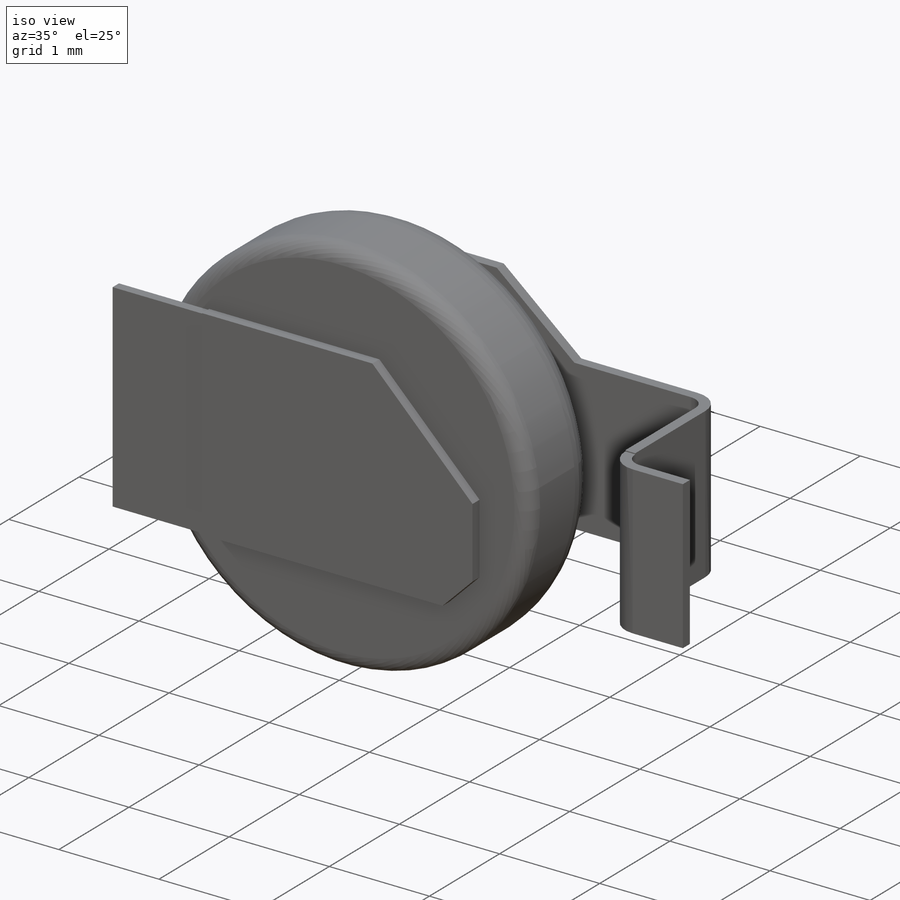
[diagram: iso view]
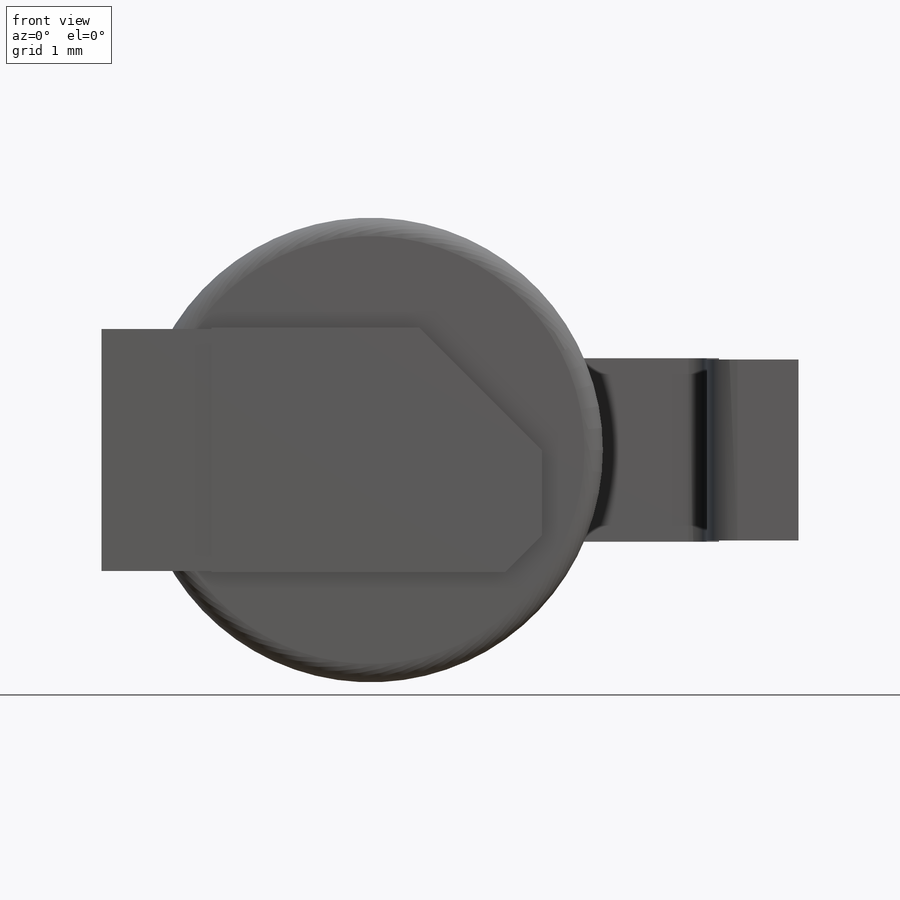
[diagram: front view]
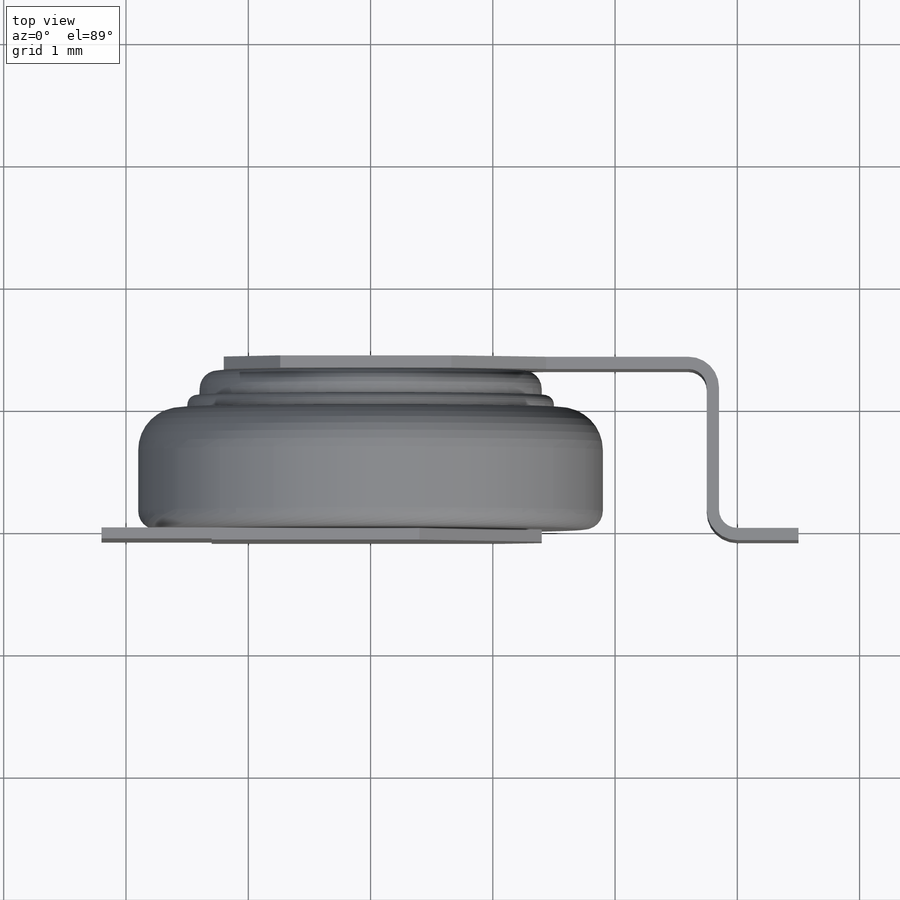
[diagram: top view]
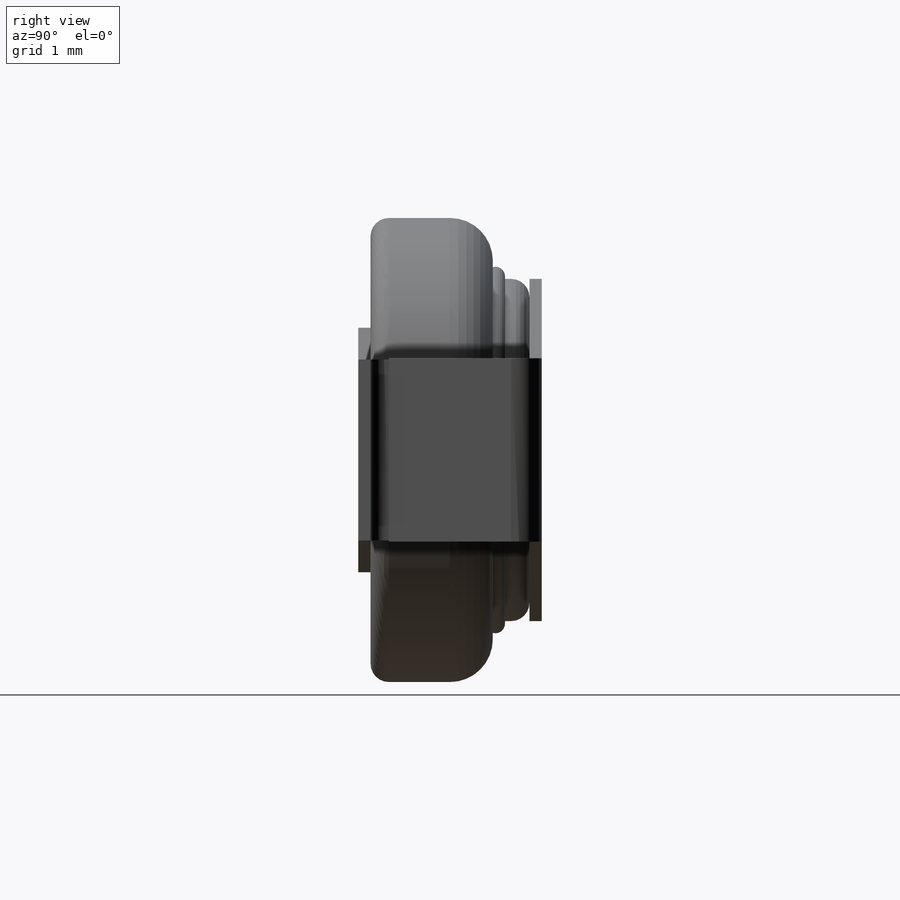
[diagram: right view]
SOLIDWORKS PART (.sldprt)
format: sldprt  version: not decoded by parser v0  size: 428,032 bytes
history: native  units: mm
features: sketch x10, cut_extrude x5, extrude x2, material x1, revolve x1, sweep x1 (+16 scaffold rows collapsed)
feature tree (36):
  scaffold x16  (default folders/planes/origin — collapsed)
  material  "Material <not specified>"
  sketch  "Sketch1"  dims[c1.D6=0.07mm c1.D3=0.08mm c1.D5=0.35mm c1.D7=0.15mm c1.D10=0.15mm c1.D1=1.3mm c1.D2=1.0mm c2.D3=0.1mm c2.D4=0.2mm c2.D5=0.03mm c2.D6=1.9mm c2.D8=0.1mm c2.D9=1.4mm]
  revolve  "Revolve1"  Angle=360deg
  sketch  "Sketch2"  dims[c1.D1=0.3mm c1.D2=2.0mm c1.D3=~1.283511mm c2.D3=45.0deg c2.D4=1.4mm c2.D5=~0.307081mm c3.D5=45.0deg c4.D5=0.7mm]
  extrude  "Boss-Extrude1"  Depth=0.1mm
  sketch  "Sketch4"  dims[D1=0.9mm]
  cut_extrude  "Cut-Extrude1"  Depth=0.01mm
  sketch  "Sketch5"
  cut_extrude  "Cut-Extrude2"  Depth=0.01mm
  sketch  "Sketch6"
  cut_extrude  "Cut-Extrude3"  Depth=0.01mm
  sketch  "Sketch7"  dims[c1.D1=~0.294221mm c2.D1=40.0deg c2.D2=~0.478425mm c3.D2=45.0deg c4.D2=1.4mm c4.D3=1.7mm c4.D4=1.5mm c4.D5=2.8mm c4.D6=0.65mm c5.D6=40.0deg c5.D7=2.5mm c5.D1=~0.291386mm c6.D1=40.0deg c6.D2=2.8mm c6.D3=1.7mm c6.D4=1.5mm c6.D5=2.5mm c6.D6=1.4mm c6.D7=~1.208878mm c7.D7=40.0deg c7.D8=1.2mm]
  extrude  "Boss-Extrude2"  Depth=0.1mm
  sketch  "Sketch8"  dims[D3=0.2mm D1=5.7mm D2=0.7mm D4=0.05mm]
  sketch  "Sketch9"
  sweep  "Sweep1"
  sketch  "Sketch10"  dims[c1.D1=0.5mm c1.D2=0.8mm c2.D1=0.25mm]
  cut_extrude  "Cut-Extrude4"  Depth=0.01mm
  sketch  "Sketch11"  dims[D1=0.25mm D2=0.8mm]
  cut_extrude  "Cut-Extrude5"  Depth=0.01mm
decode coverage: 15 of 19 modeling features carry decoded parameters
note: ~ marks probable driven/reference dimensions
note: suppression state not decoded; provenance and decode notes live in map.json
